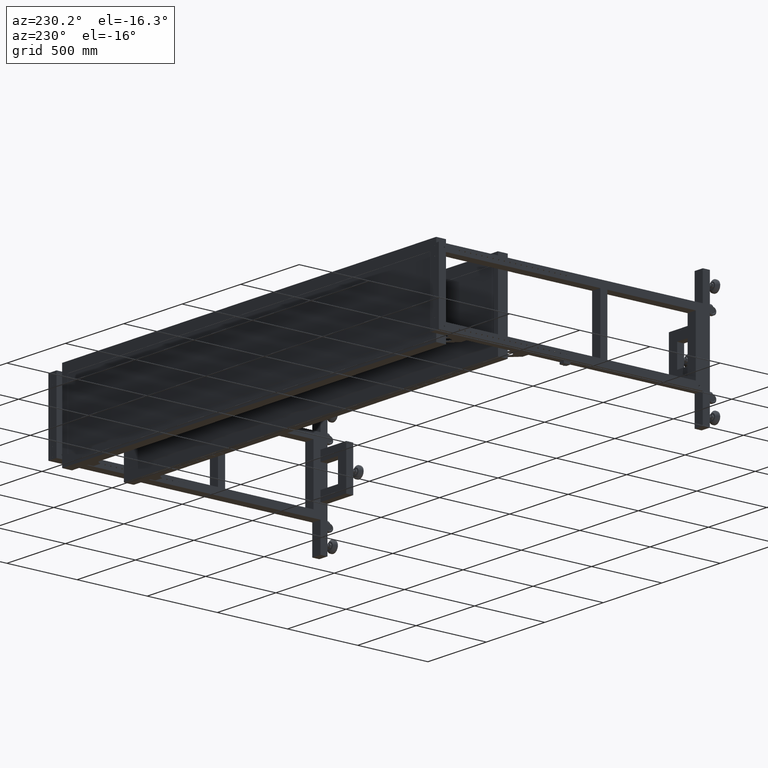
[diagram: clean part render]
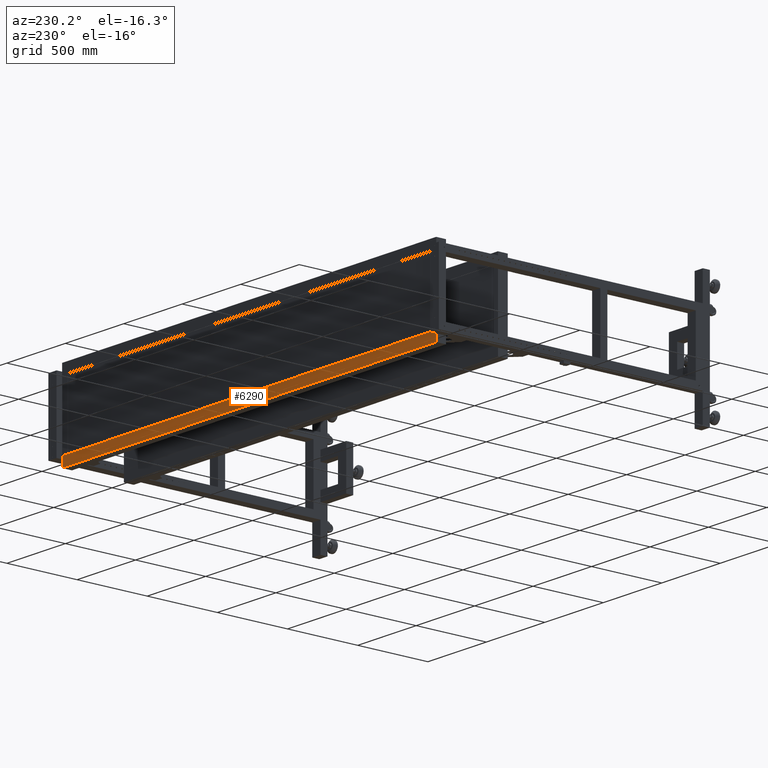
[diagram: same view with one face highlighted and labeled with its STEP entity id]
A machine part, auxiliary view. The second image highlights one B-rep face of the part: STEP entity #6290.
In plain terms, the highlighted planar face has unit normal (0, -1, -0).
Its self-contained STEP definition (entity closure, byte-faithful):
#6290 = ADVANCED_FACE ( 'NONE', ( #69250 ), #11958, .F. ) ;
#8384 = DIRECTION ( 'NONE',  ( -1.817302869021689462E-30, 4.000000000000000311E-15, -1.000000000000000000 ) ) ;
#10572 = CARTESIAN_POINT ( 'NONE',  ( 1929.827512562814263, 996.9410804020149044, -229.9999999999988631 ) ) ;
#11958 = PLANE ( 'NONE',  #47978 ) ;
#18362 = ORIENTED_EDGE ( 'NONE', *, *, #19723, .F. ) ;
#19723 = EDGE_CURVE ( 'NONE', #19796, #55914, #24268, .T. ) ;
#19796 = VERTEX_POINT ( 'NONE', #43905 ) ;
#20682 = LINE ( 'NONE', #71825, #45380 ) ;
#23113 = ORIENTED_EDGE ( 'NONE', *, *, #72067, .F. ) ;
#24268 = LINE ( 'NONE', #68461, #72246 ) ;
#28219 = DIRECTION ( 'NONE',  ( -1.000000000000000000, -4.543257172554223644E-16, 0.000000000000000000 ) ) ;
#33855 = VECTOR ( 'NONE', #28219, 1000.000000000000000 ) ;
#36901 = DIRECTION ( 'NONE',  ( 4.543257172554223644E-16, -1.000000000000000000, -4.000000000000000311E-15 ) ) ;
#37037 = LINE ( 'NONE', #78827, #67954 ) ;
#37252 = CARTESIAN_POINT ( 'NONE',  ( 1929.827512562814263, 996.9410804020151318, -299.9999999999988631 ) ) ;
#41169 = ORIENTED_EDGE ( 'NONE', *, *, #69175, .T. ) ;
#43448 = CARTESIAN_POINT ( 'NONE',  ( -1266.172487437185964, 996.9410804020139949, -299.9999999999988631 ) ) ;
#43640 = EDGE_CURVE ( 'NONE', #49588, #55914, #37037, .T. ) ;
#43905 = CARTESIAN_POINT ( 'NONE',  ( -1266.172487437185964, 996.9410804020137675, -229.9999999999988631 ) ) ;
#45380 = VECTOR ( 'NONE', #8384, 1000.000000000000000 ) ;
#47978 = AXIS2_PLACEMENT_3D ( 'NONE', #50407, #36901, #56962 ) ;
#49588 = VERTEX_POINT ( 'NONE', #37252 ) ;
#50407 = CARTESIAN_POINT ( 'NONE',  ( 1929.827512562814263, 996.9410804020151318, -299.9999999999988631 ) ) ;
#53029 = VERTEX_POINT ( 'NONE', #79485 ) ;
#55914 = VERTEX_POINT ( 'NONE', #43448 ) ;
#56962 = DIRECTION ( 'NONE',  ( -1.000000000000000000, -4.543257172554223644E-16, 0.000000000000000000 ) ) ;
#61133 = DIRECTION ( 'NONE',  ( 0.000000000000000000, 4.000000000000000311E-15, -1.000000000000000000 ) ) ;
#61314 = ORIENTED_EDGE ( 'NONE', *, *, #43640, .T. ) ;
#62831 = DIRECTION ( 'NONE',  ( -1.000000000000000000, -4.543257172554223644E-16, 0.000000000000000000 ) ) ;
#67954 = VECTOR ( 'NONE', #62831, 1000.000000000000000 ) ;
#68461 = CARTESIAN_POINT ( 'NONE',  ( -1266.172487437185964, 996.9410804020139949, -299.9999999999988631 ) ) ;
#69175 = EDGE_CURVE ( 'NONE', #53029, #49588, #20682, .T. ) ;
#69250 = FACE_OUTER_BOUND ( 'NONE', #71468, .T. ) ;
#71468 = EDGE_LOOP ( 'NONE', ( #61314, #18362, #23113, #41169 ) ) ;
#71825 = CARTESIAN_POINT ( 'NONE',  ( 1929.827512562814263, 996.9410804020151318, -299.9999999999988631 ) ) ;
#72067 = EDGE_CURVE ( 'NONE', #53029, #19796, #78918, .T. ) ;
#72246 = VECTOR ( 'NONE', #61133, 1000.000000000000000 ) ;
#78827 = CARTESIAN_POINT ( 'NONE',  ( 1929.827512562814263, 996.9410804020151318, -299.9999999999988631 ) ) ;
#78918 = LINE ( 'NONE', #10572, #33855 ) ;
#79485 = CARTESIAN_POINT ( 'NONE',  ( 1929.827512562814263, 996.9410804020149044, -229.9999999999988631 ) ) ;